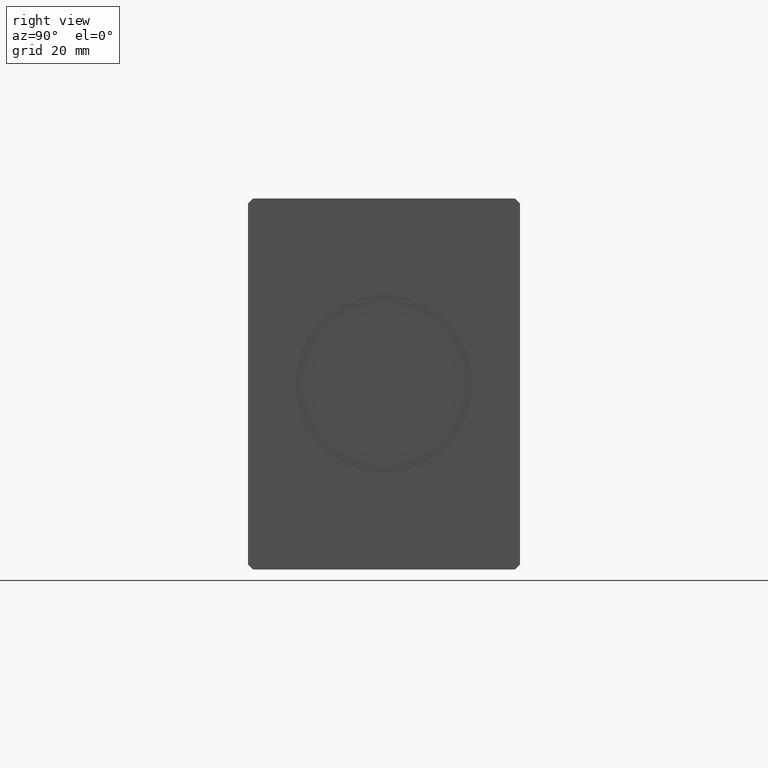
[diagram: clean part render]
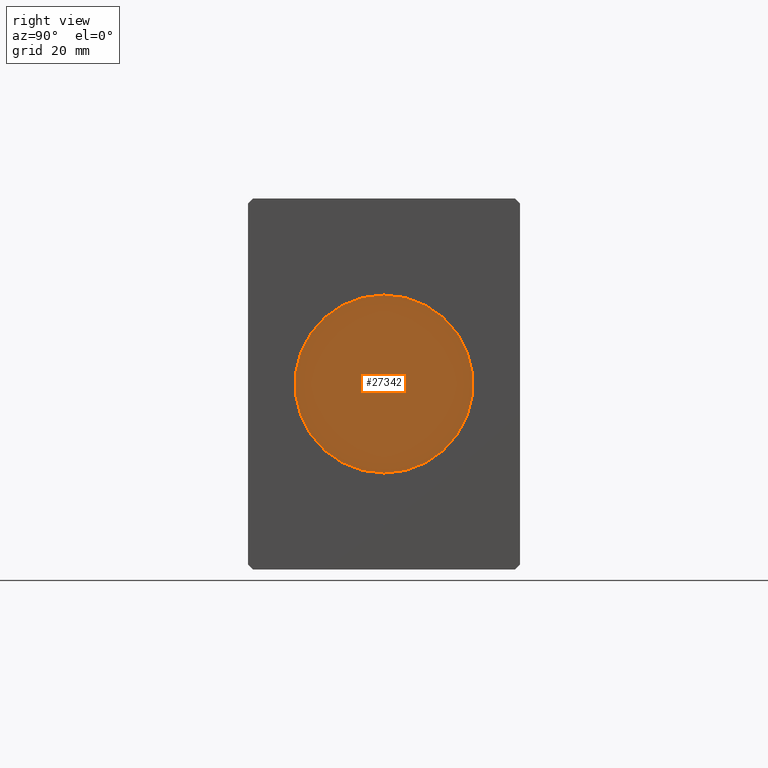
[diagram: same view with one face highlighted and labeled with its STEP entity id]
A machine part, right view. The second image highlights one B-rep face of the part: STEP entity #27342.
In plain terms, the highlighted planar face has unit normal (1, 0, 0).
Its self-contained STEP definition (entity closure, byte-faithful):
#351 = ORIENTED_EDGE ( 'NONE', *, *, #35045, .T. ) ;
#596 = CARTESIAN_POINT ( 'NONE',  ( 114.7999999999999972, 2.204364238465235428E-15, 18.00000000000000000 ) ) ;
#2502 = CARTESIAN_POINT ( 'NONE',  ( 114.7999999999999972, 0.000000000000000000, 0.000000000000000000 ) ) ;
#3662 = FACE_OUTER_BOUND ( 'NONE', #27432, .T. ) ;
#7641 = EDGE_CURVE ( 'NONE', #32317, #33246, #33013, .T. ) ;
#8245 = DIRECTION ( 'NONE',  ( 1.000000000000000000, 0.000000000000000000, 0.000000000000000000 ) ) ;
#12908 = ORIENTED_EDGE ( 'NONE', *, *, #7641, .T. ) ;
#13232 = CARTESIAN_POINT ( 'NONE',  ( 114.7999999999999972, 0.000000000000000000, 0.000000000000000000 ) ) ;
#17722 = AXIS2_PLACEMENT_3D ( 'NONE', #2502, #36578, #33208 ) ;
#18216 = CARTESIAN_POINT ( 'NONE',  ( 114.7999999999999972, 0.000000000000000000, -18.00000000000000000 ) ) ;
#25391 = DIRECTION ( 'NONE',  ( 0.000000000000000000, 0.000000000000000000, -1.000000000000000000 ) ) ;
#25857 = AXIS2_PLACEMENT_3D ( 'NONE', #35561, #8245, #28789 ) ;
#27342 = ADVANCED_FACE ( 'NONE', ( #3662 ), #28776, .T. ) ;
#27432 = EDGE_LOOP ( 'NONE', ( #351, #12908 ) ) ;
#28776 = PLANE ( 'NONE',  #35830 ) ;
#28789 = DIRECTION ( 'NONE',  ( 0.000000000000000000, 0.000000000000000000, -1.000000000000000000 ) ) ;
#31171 = DIRECTION ( 'NONE',  ( 1.000000000000000000, 0.000000000000000000, 0.000000000000000000 ) ) ;
#32317 = VERTEX_POINT ( 'NONE', #596 ) ;
#32862 = CIRCLE ( 'NONE', #25857, 18.00000000000000000 ) ;
#33013 = CIRCLE ( 'NONE', #17722, 18.00000000000000000 ) ;
#33208 = DIRECTION ( 'NONE',  ( 0.000000000000000000, 0.000000000000000000, -1.000000000000000000 ) ) ;
#33246 = VERTEX_POINT ( 'NONE', #18216 ) ;
#35045 = EDGE_CURVE ( 'NONE', #33246, #32317, #32862, .T. ) ;
#35561 = CARTESIAN_POINT ( 'NONE',  ( 114.7999999999999972, 0.000000000000000000, 0.000000000000000000 ) ) ;
#35830 = AXIS2_PLACEMENT_3D ( 'NONE', #13232, #31171, #25391 ) ;
#36578 = DIRECTION ( 'NONE',  ( 1.000000000000000000, 0.000000000000000000, 0.000000000000000000 ) ) ;